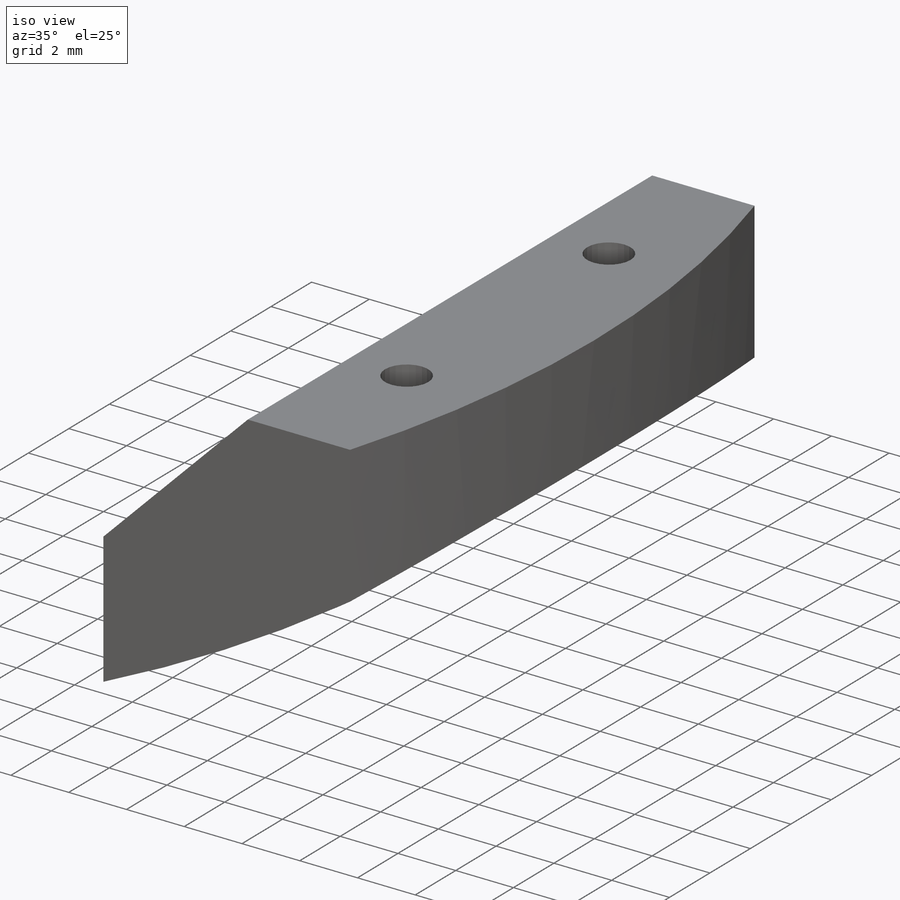
[diagram: iso view]
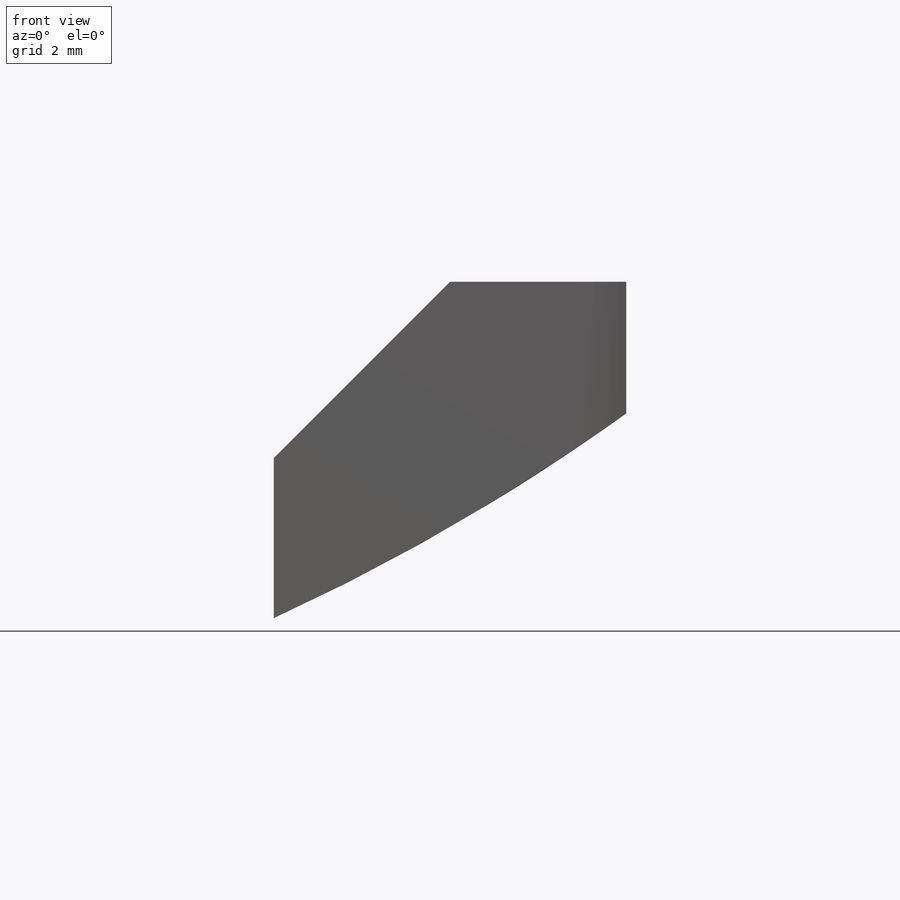
[diagram: front view]
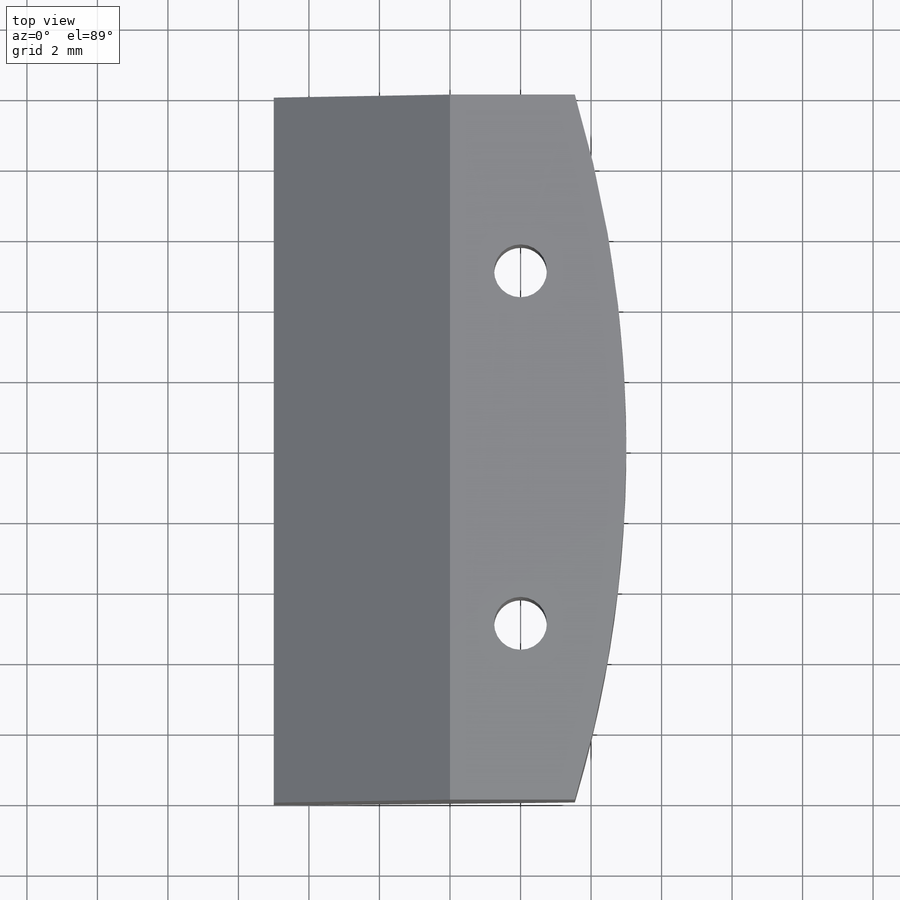
[diagram: top view]
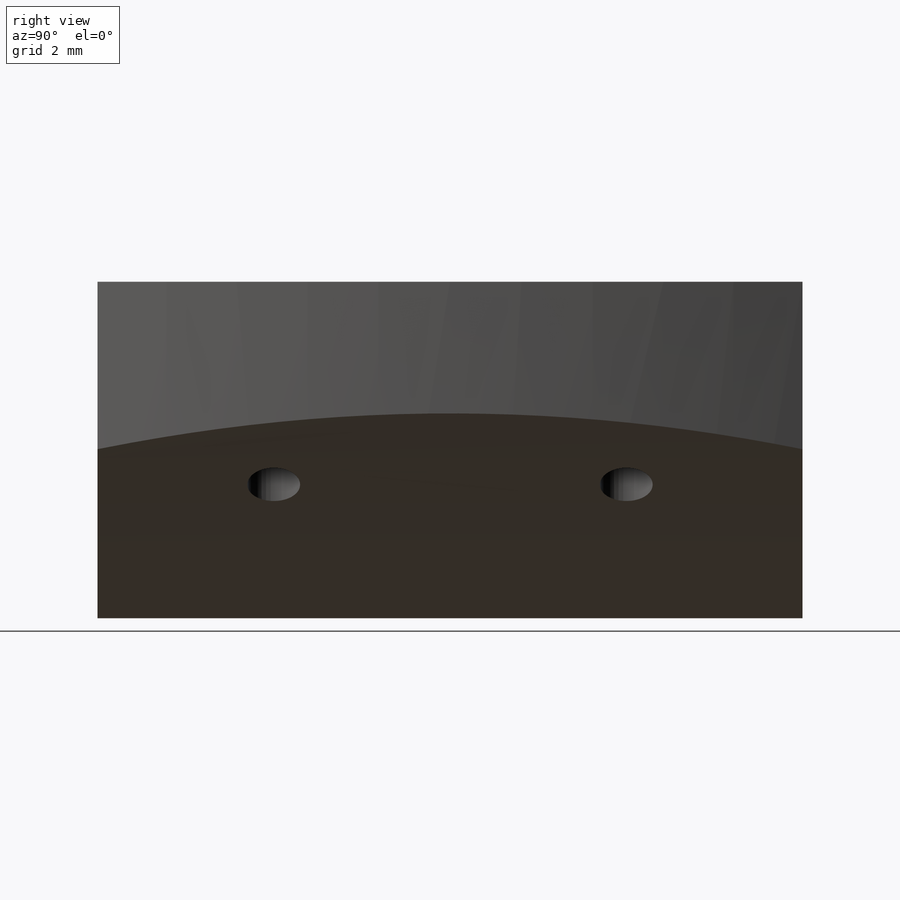
[diagram: right view]
SOLIDWORKS PART (.sldprt)
format: sldprt  version: not decoded by parser v0  size: 281,600 bytes
history: native  units: mm
features: sketch x5, cut_extrude x3, material x1, revolve x1, extrude x1 (+11 scaffold rows collapsed)
feature tree (22):
  scaffold x11  (default folders/planes/origin — collapsed)
  material  "Material <not specified>"
  sketch  "Sketch1"  dims[c1.D10=5.0mm c1.D11=2.0mm c1.D12=2.0mm c1.D1=1.8mm c1.D2=13.0mm c1.D3=20.0mm c2.D1=22.0mm c2.D4=29.0mm c2.D5=3.1mm c2.D6=1.0mm c2.D7=23.2mm c2.D8=3.0mm c2.D9=10.0mm c2.D2=3.0mm c3.D8=3.0mm c3.D9=1.0mm c3.D10=30.0mm c3.D12=3.0mm c3.D13=4.0mm c3.D14=10.0mm c3.D4=10.0mm c4.D8=35.0mm c4.D5=3.0mm c4.D6=4.0mm c5.D5=3.0mm c5.D6=10.0mm c5.D7=4.0mm c6.D5=3.0mm c6.D7=10.0mm c6.D4=10.0mm]
  revolve  "Revolve1"  Angle=360deg
  sketch  "Sketch6"  dims[c1.D1=5.0mm c1.D2=40.0mm c1.D3=5.0mm c2.D2=25.0mm c2.D4=20.0mm]
  extrude  "Boss-Extrude1"  Depth=10mm
  sketch  "Sketch12"  dims[D1=60.0mm D2=45.0mm]
  cut_extrude  "Cut-Extrude9"  Depth=20mm
  sketch  "Sketch7"  dims[c1.D1=5.0mm c1.D2=5.0mm c1.D3=5.0mm c1.D4=5.0mm c2.D3=5.0mm c2.D4=5.0mm c2.D1=5.0mm c2.D2=5.0mm c3.D1=5.0mm]
  cut_extrude  "Cut-Extrude3"  Depth=100mm
  sketch  "Sketch13"  dims[D1=1.5mm D2=1.5mm D3=5.0mm D4=5.0mm D5=32.0mm]
  cut_extrude  "Cut-Extrude10"  [1 undecoded]
decode coverage: 9 of 10 modeling features carry decoded parameters
note: 1 parameter value undecoded
note: suppression state not decoded; provenance and decode notes live in map.json
